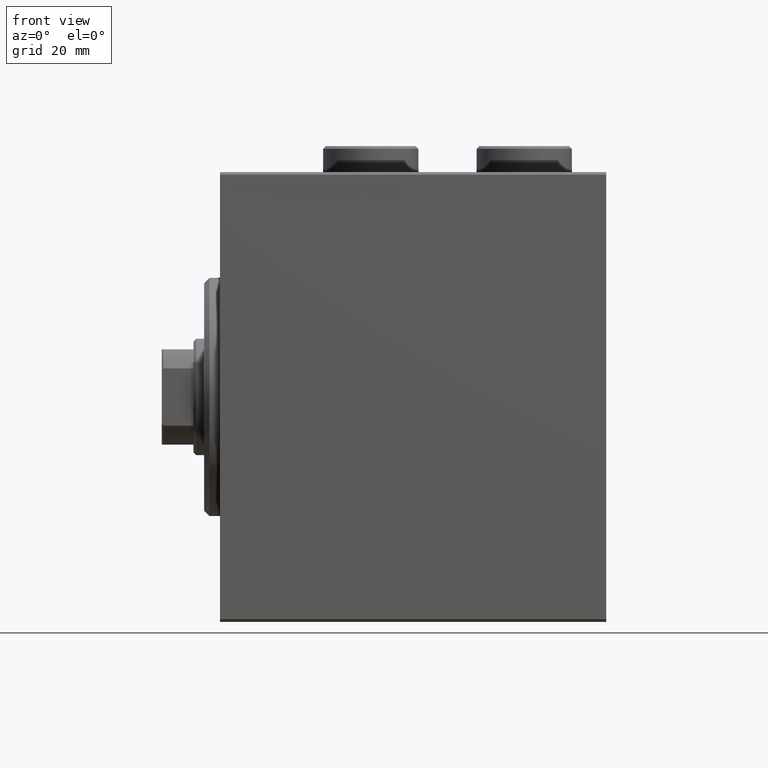
[diagram: clean part render]
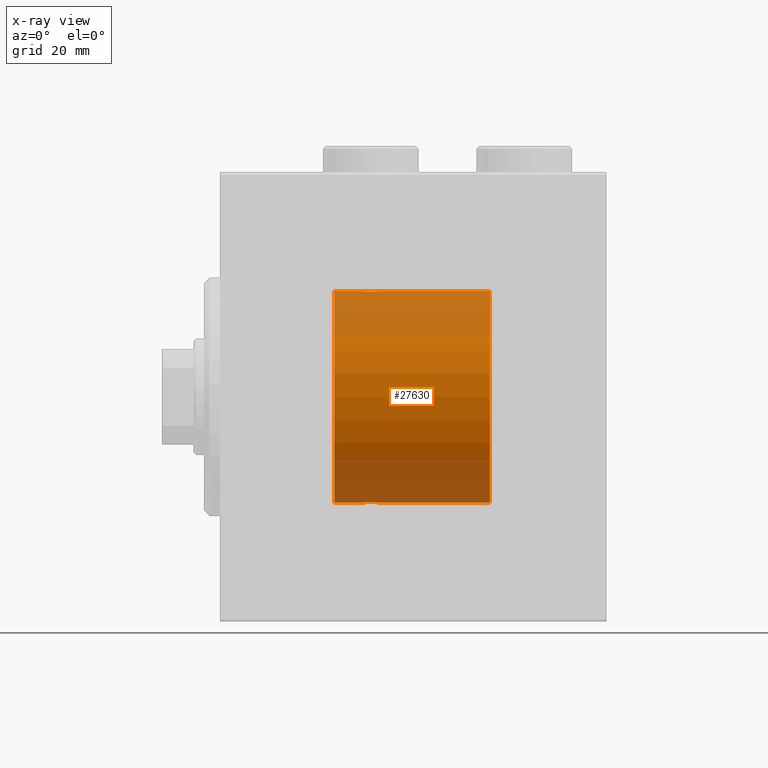
[diagram: x-ray — body ghosted, one internal face saturated and labeled with its STEP entity id]
A machine part, front view, then the same camera in x-ray: the body is ghosted and one INTERNAL B-rep face — a face not visible from any outside direction — is saturated and labeled: STEP entity #27630.
In plain terms, the highlighted cylindrical surface (partial cylindrical patch) has radius 20 mm, axis along (-1, -0, -0).
Its self-contained STEP definition (entity closure, byte-faithful):
#344 = EDGE_CURVE ( 'NONE', #35469, #13934, #34843, .T. ) ;
#2355 = CARTESIAN_POINT ( 'NONE',  ( 30.50000000000000000, -3.219052034369973620E-16, 20.00000000000000000 ) ) ;
#2814 = CARTESIAN_POINT ( 'NONE',  ( 27.49932780860757475, -1.736582545981376180, -19.92459705242981371 ) ) ;
#2992 = CARTESIAN_POINT ( 'NONE',  ( 27.49693443660397207, -1.735203193119897458, 19.92471783160910448 ) ) ;
#3223 = CARTESIAN_POINT ( 'NONE',  ( 28.63058871710834552, -2.000100592782553921, 19.89973863218035888 ) ) ;
#4412 = VECTOR ( 'NONE', #33653, 1000.000000000000000 ) ;
#4553 = CARTESIAN_POINT ( 'NONE',  ( 29.50067219139244656, -1.736582545981372183, 19.92459705242980306 ) ) ;
#4646 = LINE ( 'NONE', #43013, #23460 ) ;
#4734 = EDGE_CURVE ( 'NONE', #8639, #18468, #27907, .T. ) ;
#5306 = EDGE_CURVE ( 'NONE', #34909, #35809, #40440, .T. ) ;
#6020 = CARTESIAN_POINT ( 'NONE',  ( 27.61420923329272981, -1.797933656607917596, -19.91908554465558367 ) ) ;
#6241 = CARTESIAN_POINT ( 'NONE',  ( 29.72028945794465571, -1.589957321664208223, -19.93683391378736047 ) ) ;
#7406 = DIRECTION ( 'NONE',  ( -1.000000000000000000, -0.000000000000000000, -0.000000000000000000 ) ) ;
#7595 = FACE_OUTER_BOUND ( 'NONE', #7952, .T. ) ;
#7634 = CARTESIAN_POINT ( 'NONE',  ( 26.50000000000000355, -3.809869420541414000E-15, -20.00000000000000000 ) ) ;
#7767 = CARTESIAN_POINT ( 'NONE',  ( 29.82096906847289475, -1.507328959728490680, 19.94333197382385592 ) ) ;
#7904 = CARTESIAN_POINT ( 'NONE',  ( 51.00000000000000711, 0.000000000000000000, 20.00000000000000000 ) ) ;
#7952 = EDGE_LOOP ( 'NONE', ( #18141, #16455, #33414, #34232, #14947, #32089, #16039, #39096 ) ) ;
#8639 = VERTEX_POINT ( 'NONE', #17299 ) ;
#8852 = DIRECTION ( 'NONE',  ( -1.000000000000000000, 0.000000000000000000, 0.000000000000000000 ) ) ;
#8996 = CARTESIAN_POINT ( 'NONE',  ( 21.60000000000000142, 0.000000000000000000, 0.000000000000000000 ) ) ;
#9474 = CARTESIAN_POINT ( 'NONE',  ( 27.85651471266959334, -1.898187925611338533, -19.90978194174746818 ) ) ;
#10133 = CARTESIAN_POINT ( 'NONE',  ( 29.82306668919470383, -1.505486175075772870, -19.94347168299867334 ) ) ;
#11160 = LINE ( 'NONE', #35974, #35123 ) ;
#11366 = EDGE_CURVE ( 'NONE', #32657, #8639, #11160, .T. ) ;
#11445 = CARTESIAN_POINT ( 'NONE',  ( 29.71805419472152465, -1.591668229360193587, 19.93669678979813042 ) ) ;
#11673 = CARTESIAN_POINT ( 'NONE',  ( 29.14348528733042798, -1.898187925611339200, 19.90978194174746818 ) ) ;
#12915 = CARTESIAN_POINT ( 'NONE',  ( 29.50306556339602437, -1.735203193119894349, -19.92471783160910803 ) ) ;
#13129 = CARTESIAN_POINT ( 'NONE',  ( 28.76358144091416236, -1.986835489085814199, -19.90108393514801222 ) ) ;
#13934 = VERTEX_POINT ( 'NONE', #14101 ) ;
#14101 = CARTESIAN_POINT ( 'NONE',  ( 21.60000000000000142, 0.000000000000000000, 20.00000000000000000 ) ) ;
#14156 = AXIS2_PLACEMENT_3D ( 'NONE', #42290, #31742, #39076 ) ;
#14947 = ORIENTED_EDGE ( 'NONE', *, *, #344, .T. ) ;
#15760 = AXIS2_PLACEMENT_3D ( 'NONE', #8996, #29220, #23025 ) ;
#16039 = ORIENTED_EDGE ( 'NONE', *, *, #5306, .T. ) ;
#16204 = VECTOR ( 'NONE', #7406, 1000.000000000000000 ) ;
#16368 = CARTESIAN_POINT ( 'NONE',  ( 29.14630673924643744, -1.897222639860594029, -19.90987429971496780 ) ) ;
#16455 = ORIENTED_EDGE ( 'NONE', *, *, #11366, .T. ) ;
#16588 = CARTESIAN_POINT ( 'NONE',  ( 28.63365196142448355, -1.999898234284062992, -19.89975896996866211 ) ) ;
#16606 = CARTESIAN_POINT ( 'NONE',  ( 26.50000000000000355, -3.809869420541414000E-15, -20.00000000000000000 ) ) ;
#16810 = CARTESIAN_POINT ( 'NONE',  ( 26.90225308445269903, -1.230936344679278260, -19.96293863536309132 ) ) ;
#16994 = CARTESIAN_POINT ( 'NONE',  ( 27.85369326075355545, -1.897222639860597138, 19.90987429971497491 ) ) ;
#17299 = CARTESIAN_POINT ( 'NONE',  ( 30.50000000000000000, 2.449293582768784389E-15, -20.00000000000000000 ) ) ;
#17391 = DIRECTION ( 'NONE',  ( -1.000000000000000000, -0.000000000000000000, -0.000000000000000000 ) ) ;
#17541 = LINE ( 'NONE', #41447, #16204 ) ;
#18141 = ORIENTED_EDGE ( 'NONE', *, *, #37339, .F. ) ;
#18315 = EDGE_CURVE ( 'NONE', #33129, #35809, #4646, .T. ) ;
#18468 = VERTEX_POINT ( 'NONE', #7634 ) ;
#18666 = DIRECTION ( 'NONE',  ( -1.000000000000000000, -0.000000000000000000, -0.000000000000000000 ) ) ;
#19740 = EDGE_CURVE ( 'NONE', #34909, #13934, #25867, .T. ) ;
#20042 = CARTESIAN_POINT ( 'NONE',  ( 26.50000000000001066, -0.2644051013331030209, -20.00000000000000355 ) ) ;
#21345 = CARTESIAN_POINT ( 'NONE',  ( 29.38579076670728440, -1.797933656607917818, 19.91908554465557302 ) ) ;
#21846 = EDGE_CURVE ( 'NONE', #18468, #35469, #17541, .T. ) ;
#23025 = DIRECTION ( 'NONE',  ( 0.000000000000000000, 0.000000000000000000, 1.000000000000000000 ) ) ;
#23460 = VECTOR ( 'NONE', #18666, 1000.000000000000000 ) ;
#23488 = CARTESIAN_POINT ( 'NONE',  ( 27.98351467081095123, -1.936551476643005198, -19.90603968831098314 ) ) ;
#24091 = CARTESIAN_POINT ( 'NONE',  ( 51.00000000000000711, 2.449293598294706513E-15, -20.00000000000000000 ) ) ;
#24163 = CARTESIAN_POINT ( 'NONE',  ( 29.01923512135276795, -1.935816449315124643, -19.90611141657401717 ) ) ;
#24585 = CARTESIAN_POINT ( 'NONE',  ( 27.17693331080529973, -1.505486175075773980, 19.94347168299867334 ) ) ;
#25477 = CARTESIAN_POINT ( 'NONE',  ( 30.24686976303072683, -1.008108445278686149, 19.97602680192586888 ) ) ;
#25867 = LINE ( 'NONE', #39862, #4412 ) ;
#26958 = CARTESIAN_POINT ( 'NONE',  ( 29.38829437207091999, -1.796691196322316664, -19.91919800395357143 ) ) ;
#27175 = CARTESIAN_POINT ( 'NONE',  ( 27.28194580527848601, -1.591668229360197140, -19.93669678979812332 ) ) ;
#27401 = CARTESIAN_POINT ( 'NONE',  ( 30.09941524884030173, -1.228758402364235502, -19.96307487248084911 ) ) ;
#27588 = CARTESIAN_POINT ( 'NONE',  ( 27.98076487864723561, -1.935816449315127530, 19.90611141657401717 ) ) ;
#27630 = ADVANCED_FACE ( 'NONE', ( #7595 ), #27859, .F. ) ;
#27812 = CARTESIAN_POINT ( 'NONE',  ( 29.01648532918905943, -1.936551476643006753, 19.90603968831098669 ) ) ;
#27859 = CYLINDRICAL_SURFACE ( 'NONE', #14156, 20.00000000000000000 ) ;
#27907 = B_SPLINE_CURVE_WITH_KNOTS ( 'NONE', 3,
 ( #34050, #41602, #44606, #31055, #27401, #10133, #6241, #12915, #26958, #16368, #24163, #13129, #16588, #30402, #40938, #23488, #9474, #6020, #2814, #27175, #41160, #16810, #30830, #44824, #20042, #16606 ),
 .UNSPECIFIED., .F., .F.,
 ( 4, 2, 2, 2, 2, 2, 2, 2, 2, 2, 2, 2, 4 ),
 ( 0.006256819553329842284, 0.007038738568778818427, 0.007820657584227792836, 0.008211617091952278305, 0.008602576599676762040, 0.008993536107401245774, 0.009384495615125729509, 0.009775455122850213244, 0.01016641463057469871, 0.01055737413829918071, 0.01094833364602366618, 0.01173025266147263365, 0.01251217167692159939 ),
 .UNSPECIFIED. ) ;
#28254 = CARTESIAN_POINT ( 'NONE',  ( 30.50000000000000000, -3.219052034369973620E-16, 20.00000000000000000 ) ) ;
#28476 = CARTESIAN_POINT ( 'NONE',  ( 30.09774691554731163, -1.230936344679276706, 19.96293863536309843 ) ) ;
#29220 = DIRECTION ( 'NONE',  ( -1.000000000000000000, 0.000000000000000000, 0.000000000000000000 ) ) ;
#29472 = AXIS2_PLACEMENT_3D ( 'NONE', #35958, #8852, #29785 ) ;
#29785 = DIRECTION ( 'NONE',  ( 0.000000000000000000, 0.000000000000000000, 1.000000000000000000 ) ) ;
#30402 = CARTESIAN_POINT ( 'NONE',  ( 28.36941128289166159, -2.000100592782553921, -19.89973863218036598 ) ) ;
#30830 = CARTESIAN_POINT ( 'NONE',  ( 26.75313023696928738, -1.008108445278687704, -19.97602680192586533 ) ) ;
#31021 = CARTESIAN_POINT ( 'NONE',  ( 28.23641855908586251, -1.986835489085815309, 19.90108393514801932 ) ) ;
#31055 = CARTESIAN_POINT ( 'NONE',  ( 30.24825913460018612, -1.005710574260838985, -19.97614991974274190 ) ) ;
#31248 = CARTESIAN_POINT ( 'NONE',  ( 26.90058475115969117, -1.228758402364236169, 19.96307487248083845 ) ) ;
#31688 = CARTESIAN_POINT ( 'NONE',  ( 27.61170562792909067, -1.796691196322318662, 19.91919800395356788 ) ) ;
#31742 = DIRECTION ( 'NONE',  ( -1.000000000000000000, -0.000000000000000000, -0.000000000000000000 ) ) ;
#31884 = CARTESIAN_POINT ( 'NONE',  ( 21.60000000000000142, 2.449293598294706513E-15, -20.00000000000000000 ) ) ;
#31918 = CARTESIAN_POINT ( 'NONE',  ( 30.44679484191799901, -0.5270924491156694369, 19.99450181871976540 ) ) ;
#32089 = ORIENTED_EDGE ( 'NONE', *, *, #19740, .F. ) ;
#32657 = VERTEX_POINT ( 'NONE', #24091 ) ;
#33129 = VERTEX_POINT ( 'NONE', #7904 ) ;
#33414 = ORIENTED_EDGE ( 'NONE', *, *, #4734, .T. ) ;
#33653 = DIRECTION ( 'NONE',  ( -1.000000000000000000, -0.000000000000000000, -0.000000000000000000 ) ) ;
#34050 = CARTESIAN_POINT ( 'NONE',  ( 30.50000000000000000, 2.449293582768784389E-15, -20.00000000000000000 ) ) ;
#34232 = ORIENTED_EDGE ( 'NONE', *, *, #21846, .T. ) ;
#34458 = CARTESIAN_POINT ( 'NONE',  ( 26.55244937117492299, -0.5243189001515022873, 19.99457699142850942 ) ) ;
#34688 = CARTESIAN_POINT ( 'NONE',  ( 26.75174086539981033, -1.005710574260840984, 19.97614991974274545 ) ) ;
#34843 = CIRCLE ( 'NONE', #15760, 20.00000000000000000 ) ;
#34909 = VERTEX_POINT ( 'NONE', #43490 ) ;
#35123 = VECTOR ( 'NONE', #17391, 1000.000000000000000 ) ;
#35469 = VERTEX_POINT ( 'NONE', #31884 ) ;
#35581 = CARTESIAN_POINT ( 'NONE',  ( 30.50000000000000000, -0.2644051013330984135, 20.00000000000000355 ) ) ;
#35809 = VERTEX_POINT ( 'NONE', #2355 ) ;
#35958 = CARTESIAN_POINT ( 'NONE',  ( 51.00000000000000711, 0.000000000000000000, 0.000000000000000000 ) ) ;
#35974 = CARTESIAN_POINT ( 'NONE',  ( 51.00000000000000711, 2.449293598294706513E-15, -20.00000000000000000 ) ) ;
#37339 = EDGE_CURVE ( 'NONE', #32657, #33129, #37528, .T. ) ;
#37528 = CIRCLE ( 'NONE', #29472, 20.00000000000000000 ) ;
#37909 = CARTESIAN_POINT ( 'NONE',  ( 26.50000000000000355, -1.552596590610734385E-23, 20.00000000000000000 ) ) ;
#38579 = CARTESIAN_POINT ( 'NONE',  ( 27.27971054205536205, -1.589957321664212220, 19.93683391378736758 ) ) ;
#39076 = DIRECTION ( 'NONE',  ( 0.000000000000000000, 0.000000000000000000, 1.000000000000000000 ) ) ;
#39096 = ORIENTED_EDGE ( 'NONE', *, *, #18315, .F. ) ;
#39862 = CARTESIAN_POINT ( 'NONE',  ( 51.00000000000000711, 0.000000000000000000, 20.00000000000000000 ) ) ;
#40440 = B_SPLINE_CURVE_WITH_KNOTS ( 'NONE', 3,
 ( #37909, #42021, #34458, #34688, #31248, #24585, #38579, #2992, #31688, #16994, #27588, #31021, #45018, #3223, #45242, #27812, #11673, #21345, #4553, #11445, #7767, #28476, #25477, #31918, #35581, #28254 ),
 .UNSPECIFIED., .F., .F.,
 ( 4, 2, 2, 2, 2, 2, 2, 2, 2, 2, 2, 2, 4 ),
 ( 0.006256819553329836213, 0.007038738568778812356, 0.007820657584227787631, 0.008211617091952271366, 0.008602576599676756836, 0.008993536107401240570, 0.009384495615125724305, 0.009775455122850208040, 0.01016641463057469177, 0.01055737413829917551, 0.01094833364602365924, 0.01173025266147262671, 0.01251217167692159245 ),
 .UNSPECIFIED. ) ;
#40938 = CARTESIAN_POINT ( 'NONE',  ( 28.23922743968432059, -1.987205673487808966, -19.90104673894211018 ) ) ;
#41160 = CARTESIAN_POINT ( 'NONE',  ( 27.17903093152710525, -1.507328959728492457, -19.94333197382385592 ) ) ;
#41447 = CARTESIAN_POINT ( 'NONE',  ( 51.00000000000000711, 2.449293598294706513E-15, -20.00000000000000000 ) ) ;
#41602 = CARTESIAN_POINT ( 'NONE',  ( 30.49999999999999645, -0.2610801504281900498, -19.99999999999999645 ) ) ;
#42021 = CARTESIAN_POINT ( 'NONE',  ( 26.50000000000001421, -0.2610801504281929364, 20.00000000000000000 ) ) ;
#42290 = CARTESIAN_POINT ( 'NONE',  ( 51.00000000000000711, 0.000000000000000000, 0.000000000000000000 ) ) ;
#43013 = CARTESIAN_POINT ( 'NONE',  ( 51.00000000000000711, 0.000000000000000000, 20.00000000000000000 ) ) ;
#43490 = CARTESIAN_POINT ( 'NONE',  ( 26.50000000000000355, -1.552596590610734385E-23, 20.00000000000000000 ) ) ;
#44606 = CARTESIAN_POINT ( 'NONE',  ( 30.44755062882508412, -0.5243189001514996228, -19.99457699142849876 ) ) ;
#44824 = CARTESIAN_POINT ( 'NONE',  ( 26.55320515808203297, -0.5270924491156698810, -19.99450181871976184 ) ) ;
#45018 = CARTESIAN_POINT ( 'NONE',  ( 28.36634803857552356, -1.999898234284064769, 19.89975896996866567 ) ) ;
#45242 = CARTESIAN_POINT ( 'NONE',  ( 28.76077256031567586, -1.987205673487809410, 19.90104673894210663 ) ) ;